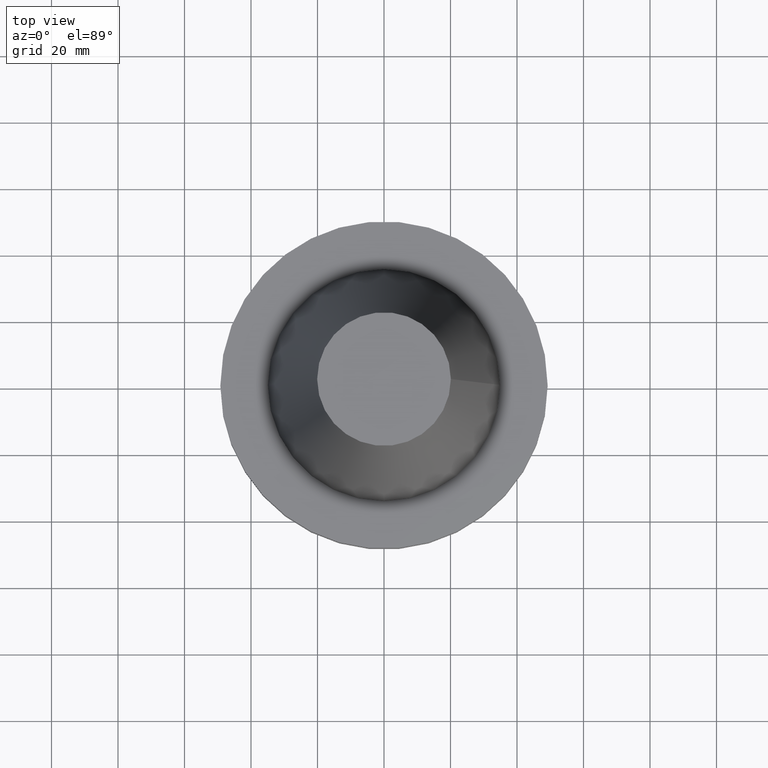
[diagram: clean part render]
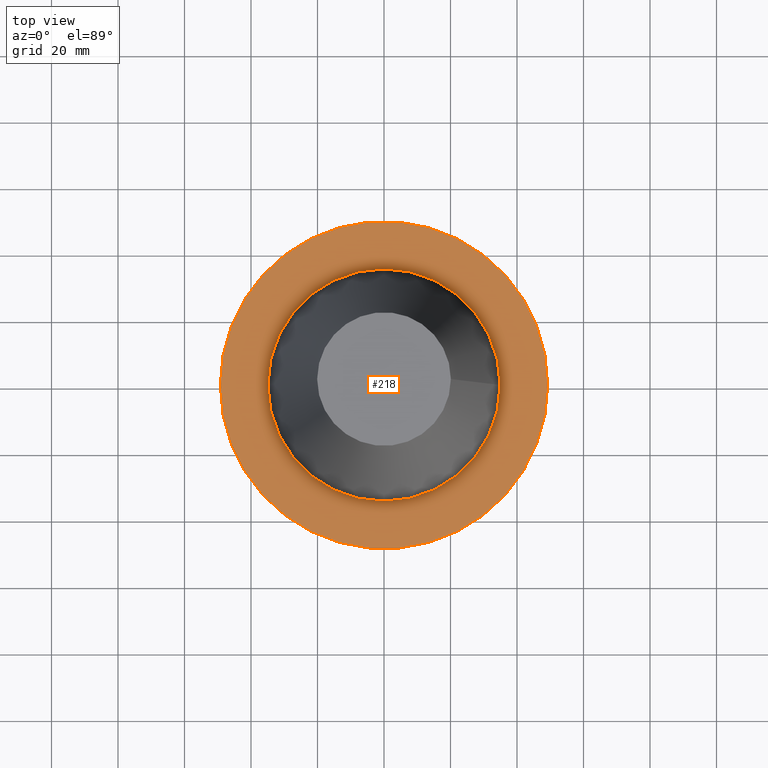
[diagram: same view with one face highlighted and labeled with its STEP entity id]
A machine part, top view. The second image highlights one B-rep face of the part: STEP entity #218.
In plain terms, the highlighted planar face has unit normal (0, 0, -1).
Its self-contained STEP definition (entity closure, byte-faithful):
#3 = DIRECTION ( 'NONE',  ( -1.000000000000000000, 0.000000000000000000, -0.000000000000000000 ) ) ;
#18 = VERTEX_POINT ( 'NONE', #197 ) ;
#20 = EDGE_LOOP ( 'NONE', ( #379 ) ) ;
#91 = PLANE ( 'NONE',  #271 ) ;
#92 = CARTESIAN_POINT ( 'NONE',  ( 0.000000000000000000, 49.21499999999999631, -1.499999999999992895 ) ) ;
#98 = DIRECTION ( 'NONE',  ( 0.000000000000000000, 0.000000000000000000, -1.000000000000000000 ) ) ;
#100 = DIRECTION ( 'NONE',  ( -0.000000000000000000, -0.000000000000000000, 1.000000000000000000 ) ) ;
#106 = AXIS2_PLACEMENT_3D ( 'NONE', #131, #100, #338 ) ;
#107 = CARTESIAN_POINT ( 'NONE',  ( 34.92499999999999005, 0.000000000000000000, -1.499999999999987566 ) ) ;
#131 = CARTESIAN_POINT ( 'NONE',  ( 0.000000000000000000, 0.000000000000000000, -1.499999999999987566 ) ) ;
#135 = VERTEX_POINT ( 'NONE', #107 ) ;
#172 = EDGE_CURVE ( 'NONE', #18, #18, #373, .T. ) ;
#178 = FACE_BOUND ( 'NONE', #20, .T. ) ;
#179 = DIRECTION ( 'NONE',  ( -0.000000000000000000, -0.000000000000000000, 1.000000000000000000 ) ) ;
#197 = CARTESIAN_POINT ( 'NONE',  ( 49.21499999999999631, 0.000000000000000000, -1.499999999999987566 ) ) ;
#218 = ADVANCED_FACE ( 'NONE', ( #178, #359 ), #91, .F. ) ;
#226 = EDGE_CURVE ( 'NONE', #135, #135, #340, .T. ) ;
#229 = AXIS2_PLACEMENT_3D ( 'NONE', #289, #179, #356 ) ;
#258 = ORIENTED_EDGE ( 'NONE', *, *, #172, .T. ) ;
#271 = AXIS2_PLACEMENT_3D ( 'NONE', #92, #98, #3 ) ;
#289 = CARTESIAN_POINT ( 'NONE',  ( 0.000000000000000000, 0.000000000000000000, -1.499999999999987566 ) ) ;
#338 = DIRECTION ( 'NONE',  ( 1.000000000000000000, 0.000000000000000000, 0.000000000000000000 ) ) ;
#340 = CIRCLE ( 'NONE', #106, 34.92499999999999005 ) ;
#350 = EDGE_LOOP ( 'NONE', ( #258 ) ) ;
#356 = DIRECTION ( 'NONE',  ( 1.000000000000000000, 0.000000000000000000, 0.000000000000000000 ) ) ;
#359 = FACE_OUTER_BOUND ( 'NONE', #350, .T. ) ;
#373 = CIRCLE ( 'NONE', #229, 49.21499999999999631 ) ;
#379 = ORIENTED_EDGE ( 'NONE', *, *, #226, .F. ) ;